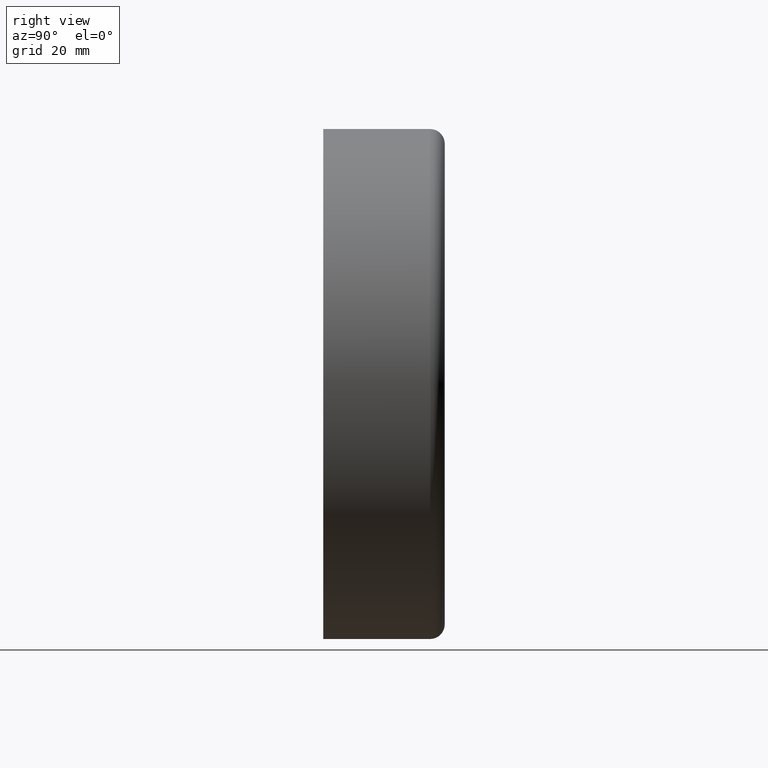
[diagram: clean part render]
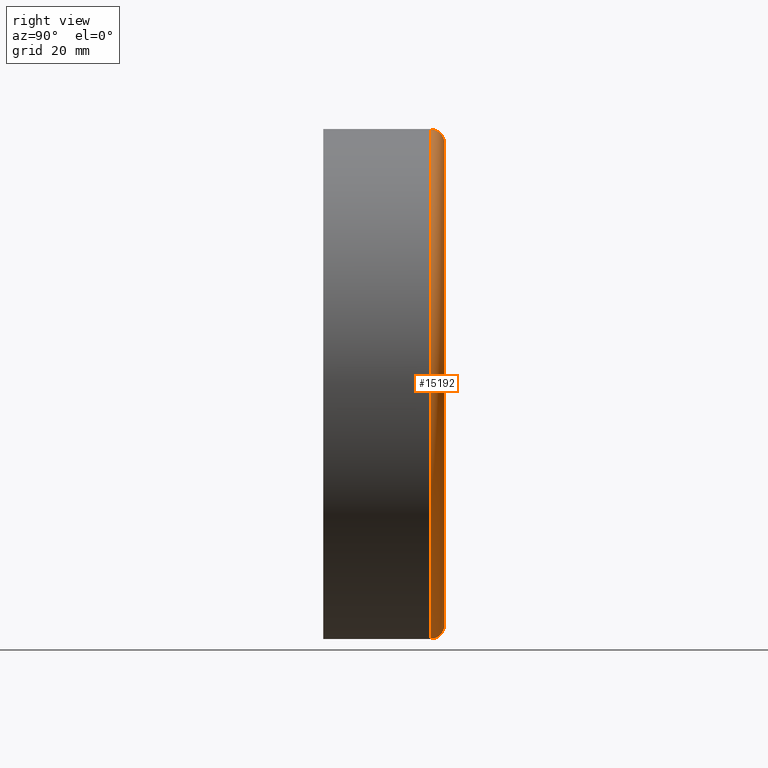
[diagram: same view with one face highlighted and labeled with its STEP entity id]
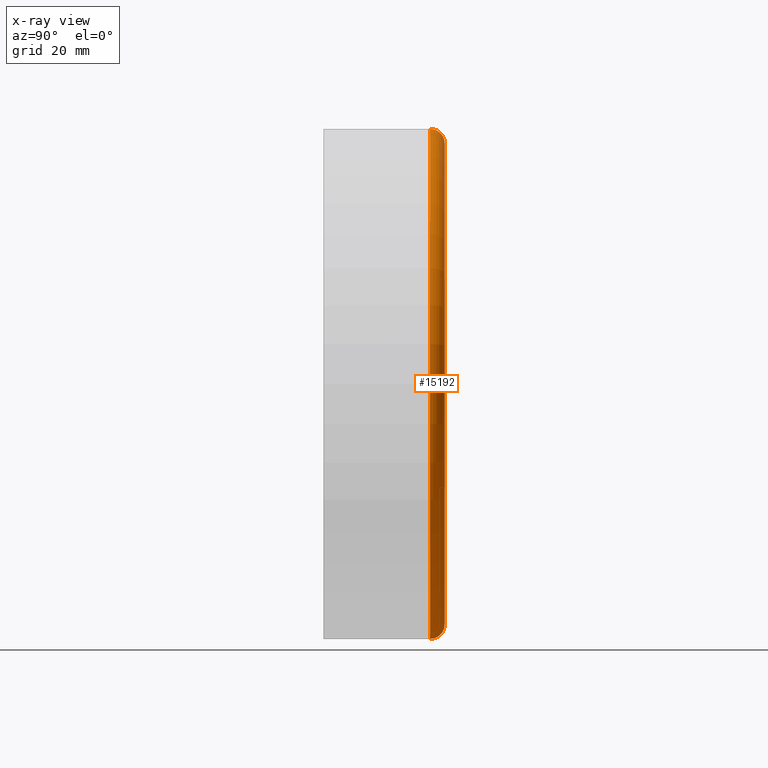
[diagram: x-ray of the same camera — body ghosted, the highlighted face saturated]
A machine part, right view. The second image highlights one B-rep face of the part: STEP entity #15192.
The next image is the same camera in x-ray: the body ghosted, the highlighted face saturated — about 0% of this face is hidden behind the body in this view.
In plain terms, the highlighted toroidal blend (fillet) surface has major radius 49.5 mm and minor (blend) radius 3 mm.
Its self-contained STEP definition (entity closure, byte-faithful):
#219 = DIRECTION ( 'NONE',  ( 0.000000000000000000, 0.000000000000000000, 1.000000000000000000 ) ) ;
#883 = DIRECTION ( 'NONE',  ( -0.000000000000000000, -1.000000000000000000, -0.000000000000000000 ) ) ;
#1473 = DIRECTION ( 'NONE',  ( -0.000000000000000000, -1.000000000000000000, -0.000000000000000000 ) ) ;
#1582 = CIRCLE ( 'NONE', #5765, 49.50000000000000000 ) ;
#2030 = CARTESIAN_POINT ( 'NONE',  ( 0.000000000000000000, 22.00000000000000355, 0.000000000000000000 ) ) ;
#2082 = DIRECTION ( 'NONE',  ( 0.000000000000000000, 0.000000000000000000, -1.000000000000000000 ) ) ;
#2136 = AXIS2_PLACEMENT_3D ( 'NONE', #2030, #883, #2082 ) ;
#2318 = EDGE_CURVE ( 'NONE', #12536, #2745, #10285, .T. ) ;
#2745 = VERTEX_POINT ( 'NONE', #8386 ) ;
#3256 = DIRECTION ( 'NONE',  ( -0.000000000000000000, -1.000000000000000000, -0.000000000000000000 ) ) ;
#3794 = AXIS2_PLACEMENT_3D ( 'NONE', #6087, #15711, #11995 ) ;
#4568 = ORIENTED_EDGE ( 'NONE', *, *, #10304, .F. ) ;
#4745 = AXIS2_PLACEMENT_3D ( 'NONE', #11833, #3256, #5715 ) ;
#5137 = DIRECTION ( 'NONE',  ( 0.000000000000000000, 0.000000000000000000, -1.000000000000000000 ) ) ;
#5378 = ORIENTED_EDGE ( 'NONE', *, *, #12288, .T. ) ;
#5715 = DIRECTION ( 'NONE',  ( 0.000000000000000000, 0.000000000000000000, -1.000000000000000000 ) ) ;
#5765 = AXIS2_PLACEMENT_3D ( 'NONE', #14723, #1473, #5137 ) ;
#6087 = CARTESIAN_POINT ( 'NONE',  ( 6.062001655779398511E-15, 22.00000000000000355, 49.50000000000000000 ) ) ;
#6366 = CIRCLE ( 'NONE', #8814, 3.000000000000002665 ) ;
#7292 = TOROIDAL_SURFACE ( 'NONE', #4745, 49.50000000000000000, 3.000000000000000888 ) ;
#7332 = CIRCLE ( 'NONE', #3794, 3.000000000000002665 ) ;
#8386 = CARTESIAN_POINT ( 'NONE',  ( 6.429395695523604744E-15, 22.00000000000000355, 52.50000000000000711 ) ) ;
#8410 = CARTESIAN_POINT ( 'NONE',  ( 0.000000000000000000, 22.00000000000000355, -52.50000000000000711 ) ) ;
#8628 = DIRECTION ( 'NONE',  ( -1.000000000000000000, 0.000000000000000000, 0.000000000000000000 ) ) ;
#8766 = ORIENTED_EDGE ( 'NONE', *, *, #10280, .T. ) ;
#8814 = AXIS2_PLACEMENT_3D ( 'NONE', #12256, #8628, #219 ) ;
#10147 = FACE_OUTER_BOUND ( 'NONE', #11913, .T. ) ;
#10280 = EDGE_CURVE ( 'NONE', #13184, #2745, #7332, .T. ) ;
#10285 = CIRCLE ( 'NONE', #2136, 52.50000000000000711 ) ;
#10304 = EDGE_CURVE ( 'NONE', #13335, #12536, #6366, .T. ) ;
#11833 = CARTESIAN_POINT ( 'NONE',  ( 0.000000000000000000, 22.00000000000000355, 0.000000000000000000 ) ) ;
#11864 = ORIENTED_EDGE ( 'NONE', *, *, #2318, .F. ) ;
#11913 = EDGE_LOOP ( 'NONE', ( #5378, #8766, #11864, #4568 ) ) ;
#11995 = DIRECTION ( 'NONE',  ( -1.224646799147351975E-16, 0.000000000000000000, -1.000000000000000000 ) ) ;
#12256 = CARTESIAN_POINT ( 'NONE',  ( 0.000000000000000000, 22.00000000000000355, -49.50000000000000000 ) ) ;
#12288 = EDGE_CURVE ( 'NONE', #13335, #13184, #1582, .T. ) ;
#12536 = VERTEX_POINT ( 'NONE', #8410 ) ;
#12735 = CARTESIAN_POINT ( 'NONE',  ( 6.245698675651501233E-15, 25.00000000000000000, 49.50000000000000000 ) ) ;
#13184 = VERTEX_POINT ( 'NONE', #12735 ) ;
#13335 = VERTEX_POINT ( 'NONE', #14587 ) ;
#14587 = CARTESIAN_POINT ( 'NONE',  ( 0.000000000000000000, 25.00000000000000000, -49.50000000000000000 ) ) ;
#14723 = CARTESIAN_POINT ( 'NONE',  ( 0.000000000000000000, 25.00000000000000000, 0.000000000000000000 ) ) ;
#15192 = ADVANCED_FACE ( 'NONE', ( #10147 ), #7292, .T. ) ;
#15711 = DIRECTION ( 'NONE',  ( 1.000000000000000000, 0.000000000000000000, -1.224646799147353207E-16 ) ) ;